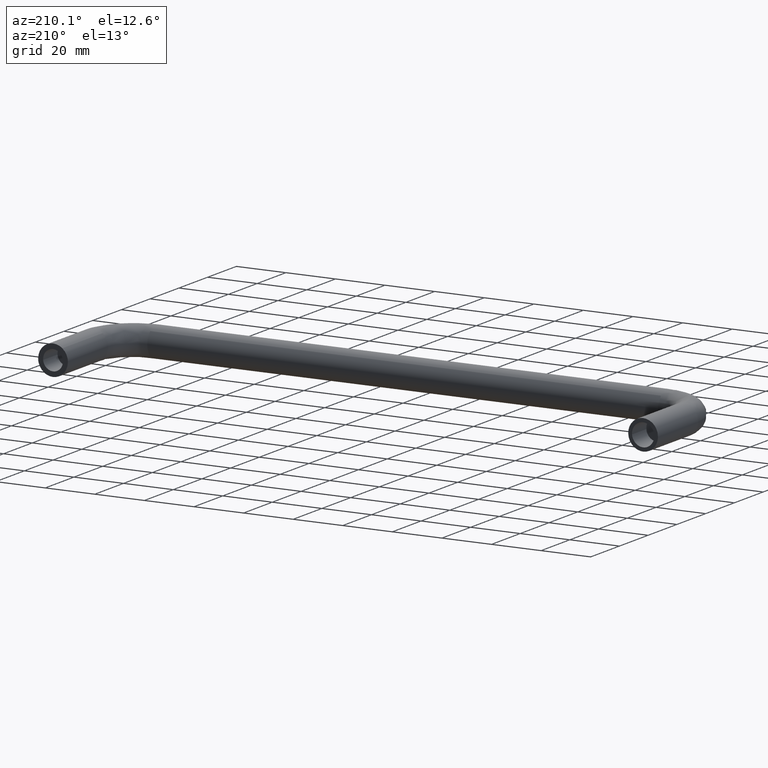
[diagram: clean part render]
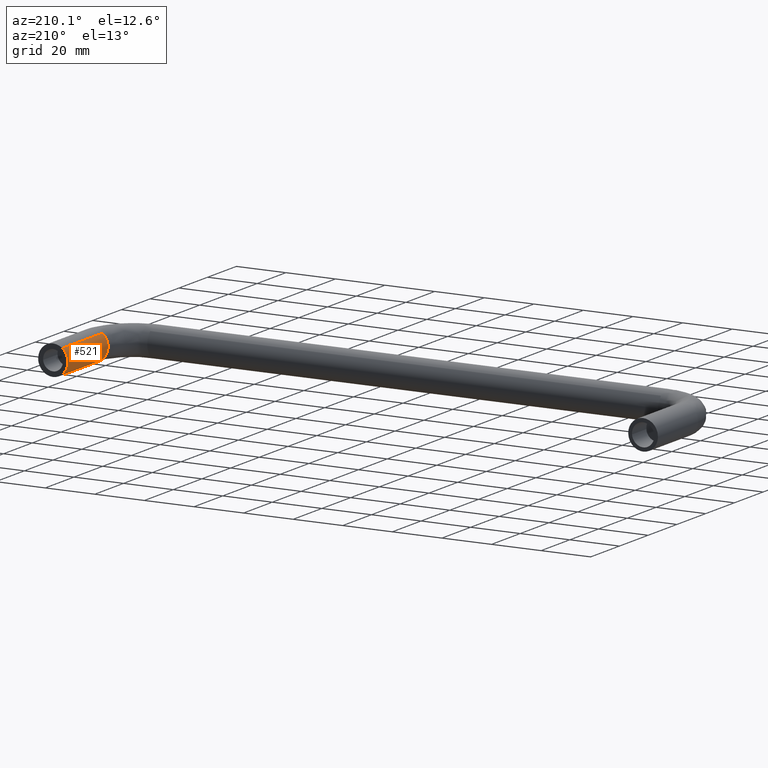
[diagram: same view with one face highlighted and labeled with its STEP entity id]
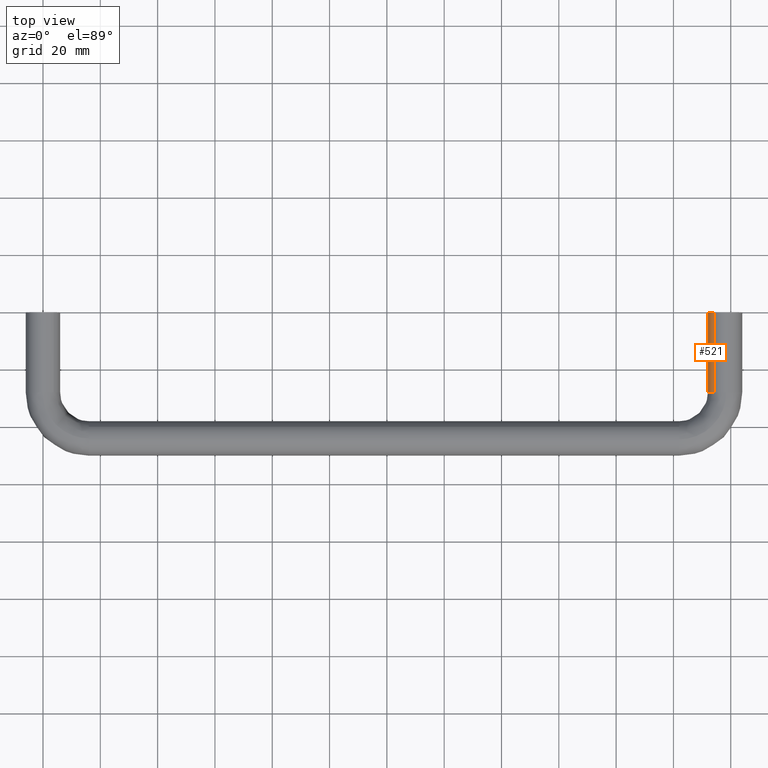
[diagram: same view with one face highlighted and labeled with its STEP entity id]
A machine part, auxiliary view. The second image highlights one B-rep face of the part: STEP entity #521.
A second angle (top view) of the same face is appended — the face is thin or edge-on in the first view.
In plain terms, the highlighted face is a freeform B-spline surface patch.
Its self-contained STEP definition (entity closure, byte-faithful):
#408=CARTESIAN_POINT('',(241.735087819825710,-28.700000000250508,-4.695648941114484));
#409=CARTESIAN_POINT('',(237.039438878711280,-28.700000000250519,-8.430736760940201));
#410=CARTESIAN_POINT('',(233.304351058885490,-28.700000000250508,-3.735087819825715));
#411=CARTESIAN_POINT('',(229.569263239059810,-28.700000000250519,0.960561121288768));
#412=CARTESIAN_POINT('',(234.264912180174290,-28.700000000250508,4.695648941114484));
#413=CARTESIAN_POINT('',(241.735087819825710,0.717500000006293,-4.695648941114484));
#414=CARTESIAN_POINT('',(237.039438878711280,0.717500000006293,-8.430736760940201));
#415=CARTESIAN_POINT('',(233.304351058885490,0.717500000006293,-3.735087819825715));
#416=CARTESIAN_POINT('',(229.569263239059810,0.717500000006293,0.960561121288768));
#417=CARTESIAN_POINT('',(234.264912180174290,0.717500000006293,4.695648941114484));
#425=(BOUNDED_SURFACE()B_SPLINE_SURFACE(2,1,((#408,#413),(#409,#414),(#410,#415),(#411,#416),(#412,#417)),.UNSPECIFIED.,.F.,.F.,.U.)B_SPLINE_SURFACE_WITH_KNOTS((3,2,3),(2,2),(0.0,9.941125496954339,19.882250993908681),(0.0,29.417500000256808),.UNSPECIFIED.)GEOMETRIC_REPRESENTATION_ITEM()RATIONAL_B_SPLINE_SURFACE(((1.0,1.0),(0.707106781186548,0.707106781186548),(1.0,1.0),(0.707106781186548,0.707106781186548),(1.0,1.0)))REPRESENTATION_ITEM('')SURFACE());
#426=CARTESIAN_POINT('',(237.924603760736890,-28.000000000244398,-5.999526265223361));
#427=VERTEX_POINT('',#426);
#428=CARTESIAN_POINT('',(241.735087819828290,-28.0,-4.695648941112443));
#429=VERTEX_POINT('',#428);
#430=CARTESIAN_POINT('',(237.924603760736910,-28.000000000244405,-5.999526265223361));
#431=CARTESIAN_POINT('',(237.962300392085720,-27.999999999999993,-6.0));
#432=CARTESIAN_POINT('',(238.0,-28.0,-6.0));
#433=CARTESIAN_POINT('',(240.095293800532890,-27.999999999999996,-6.000000000000002));
#434=CARTESIAN_POINT('',(241.735087819828290,-27.999999999999996,-4.695648941112443));
#442=(BOUNDED_CURVE()B_SPLINE_CURVE(2,(#430,#431,#432,#433,#434),.UNSPECIFIED.,.F.,.U.)B_SPLINE_CURVE_WITH_KNOTS((3,2,3),(0.247784295923900,0.250000000000000,0.357863877391611),.UNSPECIFIED.)CURVE()GEOMETRIC_REPRESENTATION_ITEM()RATIONAL_B_SPLINE_CURVE((0.994854295649010,0.997404141204852,1.0,0.873629607028286,0.856305618644017))REPRESENTATION_ITEM(''));
#443=EDGE_CURVE('',#427,#429,#442,.T.);
#444=ORIENTED_EDGE('',*,*,#443,.F.);
#445=CARTESIAN_POINT('',(232.0,-28.0,0.0));
#446=VERTEX_POINT('',#445);
#447=CARTESIAN_POINT('',(232.0,-28.0,0.0));
#448=CARTESIAN_POINT('',(232.000000000000030,-28.0,-5.925071579517050));
#449=CARTESIAN_POINT('',(237.924603760736970,-28.000000000244402,-5.999526265223361));
#457=(BOUNDED_CURVE()B_SPLINE_CURVE(2,(#447,#448,#449),.UNSPECIFIED.,.F.,.U.)B_SPLINE_CURVE_WITH_KNOTS((3,3),(0.0,0.247784295923900),.UNSPECIFIED.)CURVE()GEOMETRIC_REPRESENTATION_ITEM()RATIONAL_B_SPLINE_CURVE((1.0,0.709702639981696,0.994854295649010))REPRESENTATION_ITEM(''));
#458=EDGE_CURVE('',#446,#427,#457,.T.);
#459=ORIENTED_EDGE('',*,*,#458,.F.);
#460=CARTESIAN_POINT('',(234.264912180171710,-28.0,4.695648941112456));
#461=VERTEX_POINT('',#460);
#462=CARTESIAN_POINT('',(234.264912180171710,-28.000000000000007,4.695648941112457));
#463=CARTESIAN_POINT('',(231.999999999999890,-27.999999999999989,2.894056444901409));
#464=CARTESIAN_POINT('',(232.0,-28.0,0.0));
#472=(BOUNDED_CURVE()B_SPLINE_CURVE(2,(#462,#463,#464),.UNSPECIFIED.,.F.,.U.)B_SPLINE_CURVE_WITH_KNOTS((3,3),(0.857863877391610,1.0),.UNSPECIFIED.)CURVE()GEOMETRIC_REPRESENTATION_ITEM()RATIONAL_B_SPLINE_CURVE((0.856305618644018,0.833477174158260,1.0))REPRESENTATION_ITEM(''));
#473=EDGE_CURVE('',#461,#446,#472,.T.);
#474=ORIENTED_EDGE('',*,*,#473,.F.);
#475=CARTESIAN_POINT('',(234.264912180169400,2.808864E-014,4.695648941110602));
#476=VERTEX_POINT('',#475);
#477=CARTESIAN_POINT('',(234.264912180171710,-28.0,4.695648941112456));
#478=CARTESIAN_POINT('',(234.264912180169400,2.808864E-014,4.695648941110602));
#479=QUASI_UNIFORM_CURVE('',1,(#477,#478),.UNSPECIFIED.,.F.,.U.);
#480=EDGE_CURVE('',#461,#476,#479,.T.);
#481=ORIENTED_EDGE('',*,*,#480,.T.);
#482=CARTESIAN_POINT('',(232.0,2.775558E-014,0.0));
#483=VERTEX_POINT('',#482);
#484=CARTESIAN_POINT('',(234.264912180169380,2.808864E-014,4.695648941110602));
#485=CARTESIAN_POINT('',(231.999999999999970,2.775558E-014,2.894056444897738));
#486=CARTESIAN_POINT('',(232.0,2.775558E-014,0.0));
#494=(BOUNDED_CURVE()B_SPLINE_CURVE(2,(#484,#485,#486),.UNSPECIFIED.,.F.,.U.)B_SPLINE_CURVE_WITH_KNOTS((3,3),(0.857863877391760,1.0),.UNSPECIFIED.)CURVE()GEOMETRIC_REPRESENTATION_ITEM()RATIONAL_B_SPLINE_CURVE((0.856305618643969,0.833477174158436,1.0))REPRESENTATION_ITEM(''));
#495=EDGE_CURVE('',#476,#483,#494,.T.);
#496=ORIENTED_EDGE('',*,*,#495,.T.);
#497=CARTESIAN_POINT('',(241.735087819830600,2.853273E-014,-4.695648941110592));
#498=VERTEX_POINT('',#497);
#499=CARTESIAN_POINT('',(232.0,2.775558E-014,0.0));
#500=CARTESIAN_POINT('',(231.999999999999910,2.775558E-014,-6.0));
#501=CARTESIAN_POINT('',(238.0,2.775558E-014,-6.0));
#502=CARTESIAN_POINT('',(240.095293800536270,2.775558E-014,-6.0));
#503=CARTESIAN_POINT('',(241.735087819830570,2.853273E-014,-4.695648941110592));
#511=(BOUNDED_CURVE()B_SPLINE_CURVE(2,(#499,#500,#501,#502,#503),.UNSPECIFIED.,.F.,.U.)B_SPLINE_CURVE_WITH_KNOTS((3,2,3),(0.0,0.250000000000000,0.357863877391761),.UNSPECIFIED.)CURVE()GEOMETRIC_REPRESENTATION_ITEM()RATIONAL_B_SPLINE_CURVE((1.0,0.707106781186548,1.0,0.873629607028110,0.856305618643969))REPRESENTATION_ITEM(''));
#512=EDGE_CURVE('',#483,#498,#511,.T.);
#513=ORIENTED_EDGE('',*,*,#512,.T.);
#514=CARTESIAN_POINT('',(241.735087819828290,-28.0,-4.695648941112443));
#515=CARTESIAN_POINT('',(241.735087819830600,2.853273E-014,-4.695648941110592));
#516=QUASI_UNIFORM_CURVE('',1,(#514,#515),.UNSPECIFIED.,.F.,.U.);
#517=EDGE_CURVE('',#429,#498,#516,.T.);
#518=ORIENTED_EDGE('',*,*,#517,.F.);
#519=EDGE_LOOP('',(#444,#459,#474,#481,#496,#513,#518));
#520=FACE_OUTER_BOUND('',#519,.T.);
#521=ADVANCED_FACE('',(#520),#425,.T.);